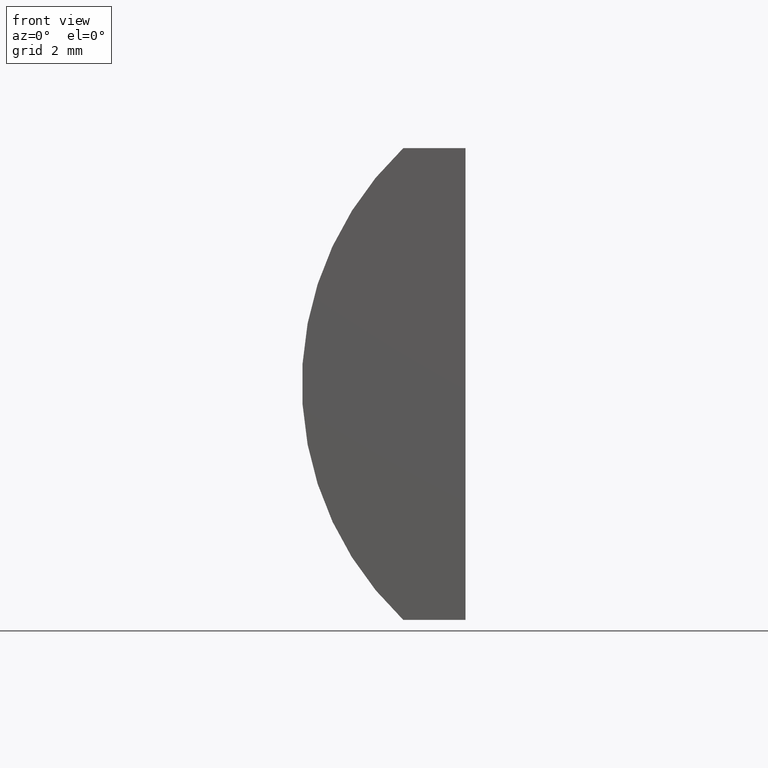
[diagram: clean part render]
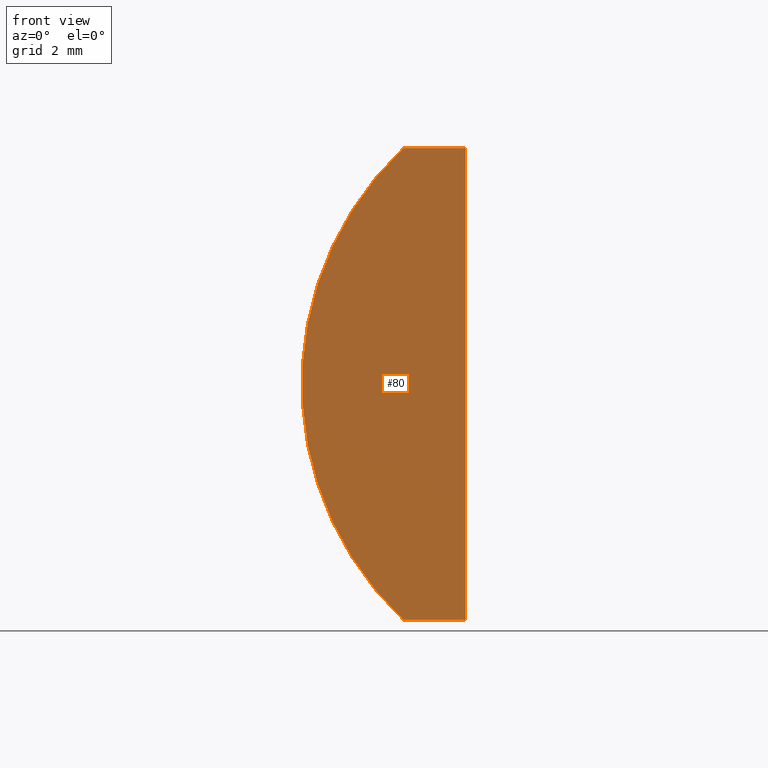
[diagram: same view with one face highlighted and labeled with its STEP entity id]
A machine part, front view. The second image highlights one B-rep face of the part: STEP entity #80.
In plain terms, the highlighted planar face has unit normal (0, 1, 0).
Its self-contained STEP definition (entity closure, byte-faithful):
#3 = ORIENTED_EDGE ( 'NONE', *, *, #68, .F. ) ;
#7 = CARTESIAN_POINT ( 'NONE',  ( -2.762772905910325900, 0.0000000000000000000, 7.500000000000000000 ) ) ;
#12 = VERTEX_POINT ( 'NONE', #149 ) ;
#17 = CARTESIAN_POINT ( 'NONE',  ( -2.762772905910325900, 0.0000000000000000000, -7.500000000000000000 ) ) ;
#19 = DIRECTION ( 'NONE',  ( -3.469446951953612200E-016, -0.0000000000000000000, -1.000000000000000000 ) ) ;
#23 = CARTESIAN_POINT ( 'NONE',  ( 4.355204334851265500, 0.0000000000000000000, 4.286263797015675000E-017 ) ) ;
#29 = LINE ( 'NONE', #7, #65 ) ;
#37 = LINE ( 'NONE', #17, #47 ) ;
#47 = VECTOR ( 'NONE', #188, 1000.000000000000000 ) ;
#50 = LINE ( 'NONE', #124, #99 ) ;
#59 = DIRECTION ( 'NONE',  ( 0.0000000000000000000, 1.000000000000000000, 0.0000000000000000000 ) ) ;
#60 = VERTEX_POINT ( 'NONE', #161 ) ;
#64 = CARTESIAN_POINT ( 'NONE',  ( -2.762772905910325900, 0.0000000000000000000, -7.500000000000000000 ) ) ;
#65 = VECTOR ( 'NONE', #73, 1000.000000000000000 ) ;
#68 = EDGE_CURVE ( 'NONE', #82, #12, #86, .T. ) ;
#73 = DIRECTION ( 'NONE',  ( 1.000000000000000000, 0.0000000000000000000, 0.0000000000000000000 ) ) ;
#74 = DIRECTION ( 'NONE',  ( 0.0000000000000000000, -0.0000000000000000000, 1.000000000000000000 ) ) ;
#79 = EDGE_CURVE ( 'NONE', #12, #60, #29, .T. ) ;
#80 = ADVANCED_FACE ( 'NONE', ( #81 ), #94, .F. ) ;
#81 = FACE_OUTER_BOUND ( 'NONE', #112, .T. ) ;
#82 = VERTEX_POINT ( 'NONE', #64 ) ;
#83 = AXIS2_PLACEMENT_3D ( 'NONE', #23, #164, #102 ) ;
#86 = CIRCLE ( 'NONE', #83, 10.34000000000000000 ) ;
#91 = ORIENTED_EDGE ( 'NONE', *, *, #171, .F. ) ;
#94 = PLANE ( 'NONE',  #196 ) ;
#99 = VECTOR ( 'NONE', #19, 1000.000000000000000 ) ;
#102 = DIRECTION ( 'NONE',  ( 0.0000000000000000000, 0.0000000000000000000, 1.000000000000000000 ) ) ;
#112 = EDGE_LOOP ( 'NONE', ( #3, #179, #91, #155 ) ) ;
#124 = CARTESIAN_POINT ( 'NONE',  ( -0.7847956651487412200, 0.0000000000000000000, -7.500000000000008000 ) ) ;
#127 = CARTESIAN_POINT ( 'NONE',  ( 4.355204334851265500, 0.0000000000000000000, 4.286263797015675000E-017 ) ) ;
#143 = EDGE_CURVE ( 'NONE', #194, #82, #37, .T. ) ;
#149 = CARTESIAN_POINT ( 'NONE',  ( -2.762772905910325900, 0.0000000000000000000, 7.500000000000000000 ) ) ;
#155 = ORIENTED_EDGE ( 'NONE', *, *, #79, .F. ) ;
#161 = CARTESIAN_POINT ( 'NONE',  ( -0.7847956651487360000, 0.0000000000000000000, 7.500000000000000000 ) ) ;
#164 = DIRECTION ( 'NONE',  ( 0.0000000000000000000, 1.000000000000000000, 0.0000000000000000000 ) ) ;
#171 = EDGE_CURVE ( 'NONE', #60, #194, #50, .T. ) ;
#175 = CARTESIAN_POINT ( 'NONE',  ( -0.7847956651487412200, 0.0000000000000000000, -7.500000000000008000 ) ) ;
#179 = ORIENTED_EDGE ( 'NONE', *, *, #143, .F. ) ;
#188 = DIRECTION ( 'NONE',  ( -1.000000000000000000, -0.0000000000000000000, 4.385094631596678500E-015 ) ) ;
#194 = VERTEX_POINT ( 'NONE', #175 ) ;
#196 = AXIS2_PLACEMENT_3D ( 'NONE', #127, #59, #74 ) ;